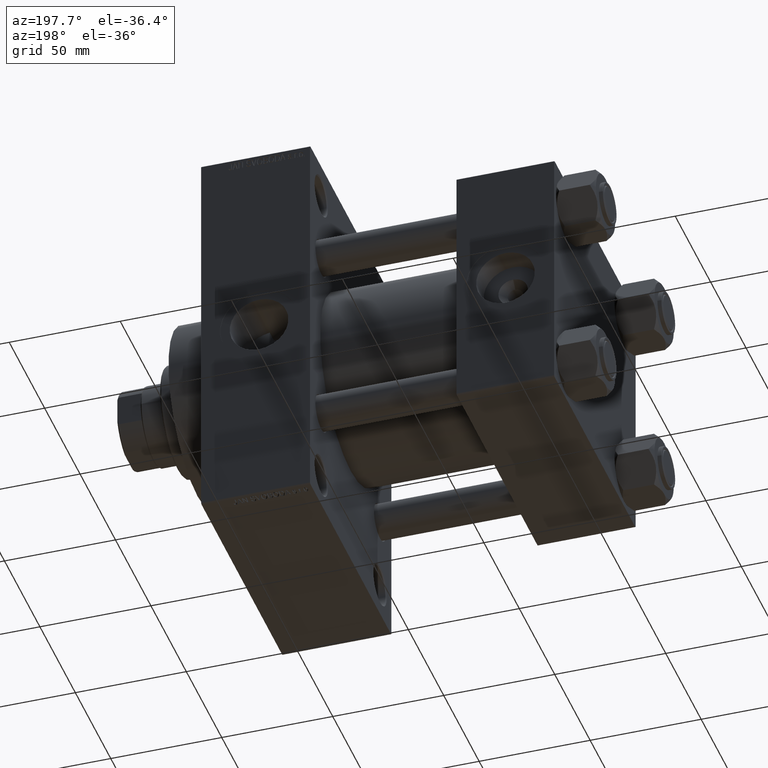
[diagram: clean part render]
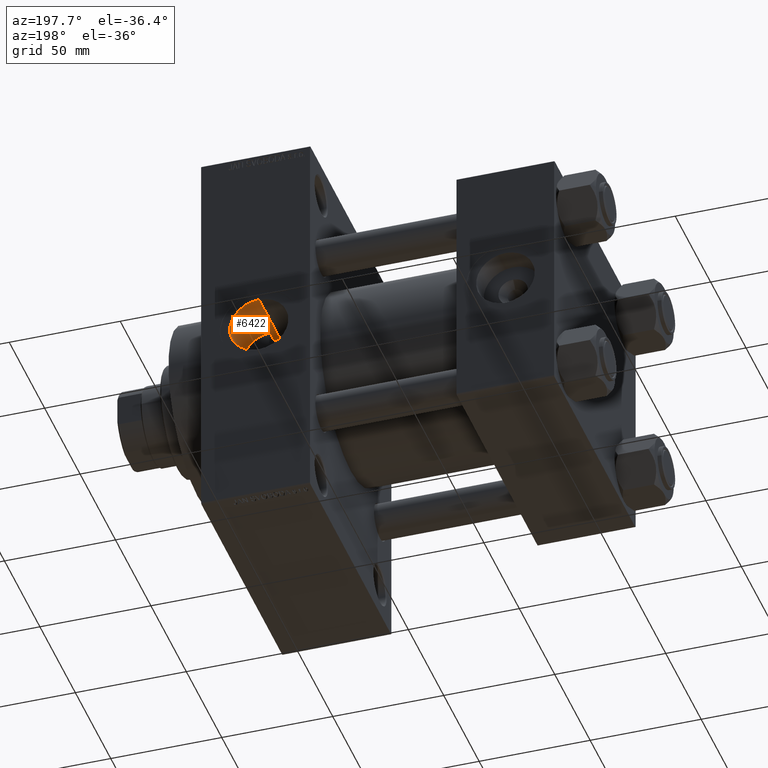
[diagram: same view with one face highlighted and labeled with its STEP entity id]
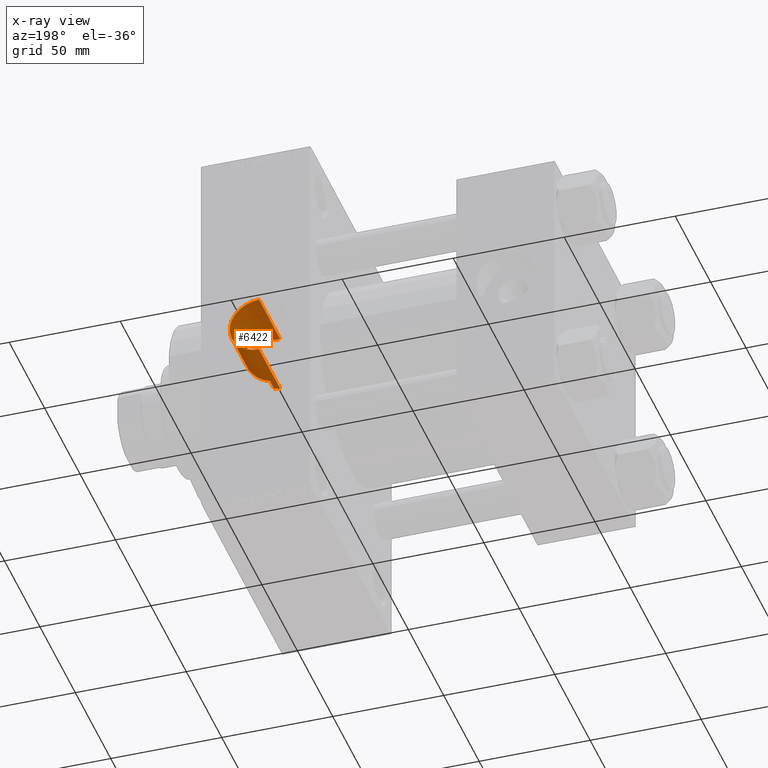
[diagram: x-ray of the same camera — body ghosted, the highlighted face saturated]
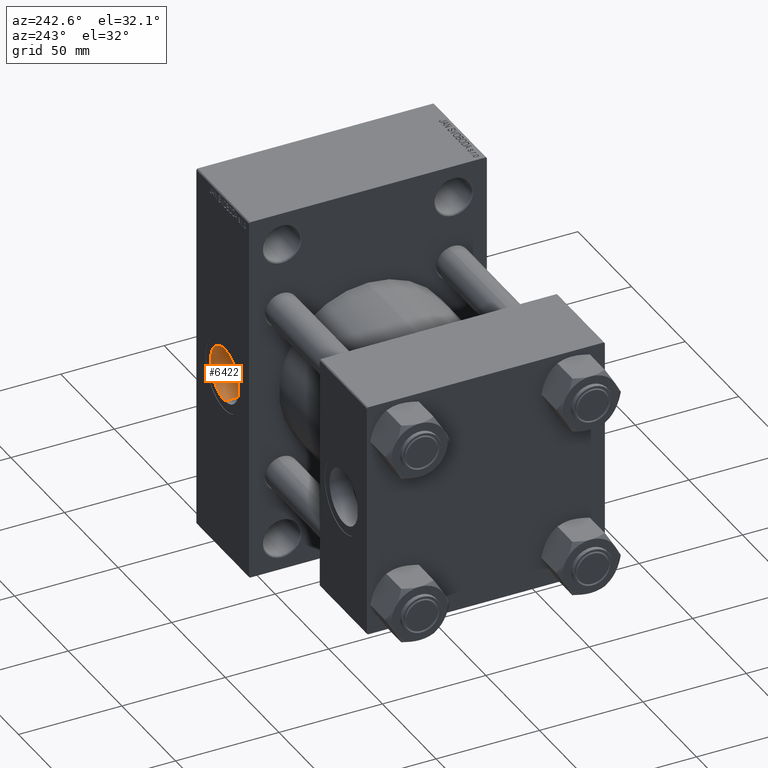
[diagram: same view with one face highlighted and labeled with its STEP entity id]
A machine part, auxiliary view. The second image highlights one B-rep face of the part: STEP entity #6422.
The next image is the same camera in x-ray: the body ghosted, the highlighted face saturated — about 1% of this face is hidden behind the body in this view.
A second angle (auxiliary view) of the same face is appended — the face is thin or edge-on in the first view.
In plain terms, the highlighted cylindrical surface (edge-blend (fillet) strip) has radius 13.22 mm, axis along (0, 1, 0).
Its self-contained STEP definition (entity closure, byte-faithful):
#215 = CARTESIAN_POINT ( 'NONE',  ( 138.5933060363426819, 33.94179174322903236, 12.00173046293031121 ) ) ;
#654 = ORIENTED_EDGE ( 'NONE', *, *, #23875, .F. ) ;
#918 = CARTESIAN_POINT ( 'NONE',  ( 143.7286871753288722, 35.15866088695766223, 7.760569906701274334 ) ) ;
#1393 = CARTESIAN_POINT ( 'NONE',  ( 145.1971085353886224, 35.63627862537938995, -5.154654075414359049 ) ) ;
#1587 = B_SPLINE_CURVE_WITH_KNOTS ( 'NONE', 3,
 ( #30149, #45071, #29915, #12047 ),
 .UNSPECIFIED., .F., .F.,
 ( 4, 4 ),
 ( 0.000000000000000000, 0.002754153663978152478 ),
 .UNSPECIFIED. ) ;
#1657 = CARTESIAN_POINT ( 'NONE',  ( 135.7400000000000091, 33.59671412504502541, -12.93293470176047677 ) ) ;
#4445 = EDGE_CURVE ( 'NONE', #4669, #41529, #30288, .T. ) ;
#4528 = CARTESIAN_POINT ( 'NONE',  ( 144.1394098962385613, 35.28849287670992396, -7.129014450017018056 ) ) ;
#4669 = VERTEX_POINT ( 'NONE', #10227 ) ;
#4899 = VECTOR ( 'NONE', #24540, 1000.000000000000000 ) ;
#4935 = DIRECTION ( 'NONE',  ( -0.000000000000000000, 1.000000000000000000, -0.000000000000000000 ) ) ;
#5002 = CARTESIAN_POINT ( 'NONE',  ( 144.3364747806119226, 35.35134026915534378, -6.811177353909287469 ) ) ;
#5010 = EDGE_CURVE ( 'NONE', #46758, #10520, #8878, .T. ) ;
#5241 = CARTESIAN_POINT ( 'NONE',  ( 145.7033546496753900, 35.81270017918523507, 3.737456918487965574 ) ) ;
#5479 = CARTESIAN_POINT ( 'NONE',  ( 144.1473667493317805, 35.28988197082103540, 7.145511571797288575 ) ) ;
#5647 = ORIENTED_EDGE ( 'NONE', *, *, #5010, .F. ) ;
#6368 = CARTESIAN_POINT ( 'NONE',  ( 133.0000000000000000, -37.39180658914467159, 2.216591108192586142E-15 ) ) ;
#6422 = ADVANCED_FACE ( 'NONE', ( #27869 ), #46886, .F. ) ;
#8878 = B_SPLINE_CURVE_WITH_KNOTS ( 'NONE', 3,
 ( #14692, #44102, #40481, #215, #19485, #45999, #15887, #42393, #12972, #33970, #12738, #918, #5479, #9109, #41916, #27454, #37814, #5241, #34204, #27683, #30594, #9341, #45514, #23353, #42155, #20200, #15646, #12015, #34449, #1393, #24066, #5002, #4528, #45280, #19957, #27214, #16124, #12259, #26973, #45759, #16364, #34688, #19244, #30355, #31312, #45043, #26734, #38057 ),
 .UNSPECIFIED., .F., .F.,
 ( 4, 2, 2, 2, 2, 2, 2, 2, 2, 2, 2, 2, 2, 2, 2, 2, 2, 2, 2, 2, 2, 2, 2, 4 ),
 ( 0.000000000000000000, 0.002261541487190001608, 0.004523082974380003216, 0.006784624461570005691, 0.007915395205165010398, 0.009046165948760015105, 0.01130770743595007656, 0.01243847817954510555, 0.01356924892314013455, 0.01583079041033019427, 0.01696156115392522326, 0.01809233189752025225, 0.02035387338471031024, 0.02148464412830534617, 0.02261541487190038210, 0.02487695635909042968, 0.02600772710268545521, 0.02713849784628048073, 0.02940003933347052831, 0.03053081007706552261, 0.03166158082066051344, 0.03392312230785050203, 0.03505389305144545470, 0.03618466379504041430 ),
 .UNSPECIFIED. ) ;
#9109 = CARTESIAN_POINT ( 'NONE',  ( 144.6959585139428839, 35.46825540645415487, 6.173441884947803437 ) ) ;
#9341 = CARTESIAN_POINT ( 'NONE',  ( 146.2028789376522013, 35.99370328767532357, 0.7717106264536142124 ) ) ;
#10041 = VERTEX_POINT ( 'NONE', #31678 ) ;
#10227 = CARTESIAN_POINT ( 'NONE',  ( 133.0000000000000000, 27.48602554026317435, 13.22000000000001485 ) ) ;
#10237 = DIRECTION ( 'NONE',  ( 0.000000000000000000, 0.000000000000000000, 1.000000000000000000 ) ) ;
#10520 = VERTEX_POINT ( 'NONE', #1657 ) ;
#10744 = VERTEX_POINT ( 'NONE', #43122 ) ;
#11519 = EDGE_CURVE ( 'NONE', #10744, #10041, #1587, .T. ) ;
#11935 = CARTESIAN_POINT ( 'NONE',  ( 135.7400000000000091, -37.39180658914467159, -12.93293470176047677 ) ) ;
#12015 = CARTESIAN_POINT ( 'NONE',  ( 145.6909266299917363, 35.80898173995095846, -3.721805252510565154 ) ) ;
#12047 = CARTESIAN_POINT ( 'NONE',  ( 133.0000000000000000, 27.48602554026317790, -13.22000000000001130 ) ) ;
#12259 = CARTESIAN_POINT ( 'NONE',  ( 141.4323112275375536, 34.52915186654069402, -10.18835451941007619 ) ) ;
#12738 = CARTESIAN_POINT ( 'NONE',  ( 143.0185801571961122, 34.95071279789108587, 8.633489739355315606 ) ) ;
#12791 = DIRECTION ( 'NONE',  ( 0.000000000000000000, 0.000000000000000000, 1.000000000000000000 ) ) ;
#12972 = CARTESIAN_POINT ( 'NONE',  ( 142.2521418842815422, 34.73862178565917702, 9.450126880761136050 ) ) ;
#14692 = CARTESIAN_POINT ( 'NONE',  ( 135.7400000000000091, 33.59671412504501831, 12.93293470176048032 ) ) ;
#14880 = CARTESIAN_POINT ( 'NONE',  ( 135.7400000000000091, 33.59671412504501831, 12.93293470176048032 ) ) ;
#15434 = ORIENTED_EDGE ( 'NONE', *, *, #39021, .T. ) ;
#15646 = CARTESIAN_POINT ( 'NONE',  ( 145.8829549964506782, 35.87748714674541617, -2.990137726740094593 ) ) ;
#15887 = CARTESIAN_POINT ( 'NONE',  ( 141.1461456704165869, 34.45721300195066306, 10.43832106051816488 ) ) ;
#16124 = CARTESIAN_POINT ( 'NONE',  ( 142.2706759706837261, 34.74024261417464743, -9.453842015368202567 ) ) ;
#16364 = CARTESIAN_POINT ( 'NONE',  ( 140.2252811143993370, 34.25403786948012197, -11.07714144511488996 ) ) ;
#16490 = AXIS2_PLACEMENT_3D ( 'NONE', #22929, #45813, #12791 ) ;
#17300 = LINE ( 'NONE', #39472, #4899 ) ;
#18275 = ORIENTED_EDGE ( 'NONE', *, *, #4445, .T. ) ;
#18800 = EDGE_CURVE ( 'NONE', #4669, #22464, #38508, .T. ) ;
#18842 = CARTESIAN_POINT ( 'NONE',  ( 133.9195580357263395, 27.48602554026317080, 13.22000000000001485 ) ) ;
#19244 = CARTESIAN_POINT ( 'NONE',  ( 138.6051762912404399, 33.94373400491306114, -11.99626342902757337 ) ) ;
#19485 = CARTESIAN_POINT ( 'NONE',  ( 139.2634667834694255, 34.05975999988856273, 11.66637162473797495 ) ) ;
#19957 = CARTESIAN_POINT ( 'NONE',  ( 143.4916658138077139, 35.08925744010397807, -8.051866093655576151 ) ) ;
#20200 = CARTESIAN_POINT ( 'NONE',  ( 145.9629156845498130, 35.90633945151148509, -2.621651557121439158 ) ) ;
#20730 = CARTESIAN_POINT ( 'NONE',  ( 133.0000000000000000, 57.29999999999996874, -13.22000000000001130 ) ) ;
#22035 = EDGE_LOOP ( 'NONE', ( #654, #23805, #40716, #5647, #40416, #42617, #18275, #15434 ) ) ;
#22464 = VERTEX_POINT ( 'NONE', #26308 ) ;
#22929 = CARTESIAN_POINT ( 'NONE',  ( 133.0000000000000000, 57.29999999999996874, 2.216591108192586142E-15 ) ) ;
#23353 = CARTESIAN_POINT ( 'NONE',  ( 146.2204654152534147, 36.00017091079578790, -0.7555805454783885988 ) ) ;
#23699 = VERTEX_POINT ( 'NONE', #20730 ) ;
#23805 = ORIENTED_EDGE ( 'NONE', *, *, #11519, .F. ) ;
#23875 = EDGE_CURVE ( 'NONE', #10041, #23699, #17300, .T. ) ;
#24066 = CARTESIAN_POINT ( 'NONE',  ( 144.8859945304910184, 35.53010638142644240, -5.835162689468439190 ) ) ;
#24540 = DIRECTION ( 'NONE',  ( -0.000000000000000000, 1.000000000000000000, -0.000000000000000000 ) ) ;
#25450 = DIRECTION ( 'NONE',  ( 0.000000000000000000, -1.000000000000000000, 0.000000000000000000 ) ) ;
#26308 = CARTESIAN_POINT ( 'NONE',  ( 135.7400000000000091, 27.62225914004862304, 12.93293470176048032 ) ) ;
#26324 = CARTESIAN_POINT ( 'NONE',  ( 135.7400000000000091, 27.62225914004862304, 12.93293470176048032 ) ) ;
#26734 = CARTESIAN_POINT ( 'NONE',  ( 136.1132085380460239, 33.62715136930764714, -12.85386591978424775 ) ) ;
#26973 = CARTESIAN_POINT ( 'NONE',  ( 141.1417547516501543, 34.45915333924856583, -10.42213975181990726 ) ) ;
#27214 = CARTESIAN_POINT ( 'NONE',  ( 142.7854413968720166, 34.88242835481358384, -8.920220469445172995 ) ) ;
#27454 = CARTESIAN_POINT ( 'NONE',  ( 145.1774292073409072, 35.63004118577010360, 5.159373866595187152 ) ) ;
#27683 = CARTESIAN_POINT ( 'NONE',  ( 146.0882787205803197, 35.95178749193544121, 1.899113185740345822 ) ) ;
#27869 = FACE_OUTER_BOUND ( 'NONE', #22035, .T. ) ;
#28629 = VECTOR ( 'NONE', #38444, 1000.000000000000000 ) ;
#29915 = CARTESIAN_POINT ( 'NONE',  ( 133.9197172709656627, 27.48602554026317435, -13.22000000000000952 ) ) ;
#30149 = CARTESIAN_POINT ( 'NONE',  ( 135.7399999999999523, 27.62225914004861949, -12.93293470176048743 ) ) ;
#30260 = LINE ( 'NONE', #44712, #42837 ) ;
#30288 = LINE ( 'NONE', #41846, #35234 ) ;
#30355 = CARTESIAN_POINT ( 'NONE',  ( 137.5630435524126085, 33.79252632900233522, -12.41317920266251384 ) ) ;
#30360 = EDGE_CURVE ( 'NONE', #46758, #22464, #30260, .T. ) ;
#30594 = CARTESIAN_POINT ( 'NONE',  ( 146.1371322321481045, 35.96963868881437776, 1.525551129375370740 ) ) ;
#30994 = CARTESIAN_POINT ( 'NONE',  ( 133.0000000000000000, 57.29999999999996874, 13.22000000000001485 ) ) ;
#31312 = CARTESIAN_POINT ( 'NONE',  ( 137.2082429394939993, 33.74627601644314012, -12.53805090881421691 ) ) ;
#31678 = CARTESIAN_POINT ( 'NONE',  ( 133.0000000000000000, 27.48602554026317790, -13.22000000000001130 ) ) ;
#31963 = DIRECTION ( 'NONE',  ( -0.000000000000000000, 1.000000000000000000, -0.000000000000000000 ) ) ;
#33970 = CARTESIAN_POINT ( 'NONE',  ( 142.7693593199377062, 34.87993829756943853, 8.914406653687468207 ) ) ;
#33976 = EDGE_CURVE ( 'NONE', #10744, #10520, #44958, .T. ) ;
#34204 = CARTESIAN_POINT ( 'NONE',  ( 145.8947141785547501, 35.88162189390808265, 3.009955031685968674 ) ) ;
#34449 = CARTESIAN_POINT ( 'NONE',  ( 145.5781868588421162, 35.76909572614820831, -4.086623809376308536 ) ) ;
#34514 = AXIS2_PLACEMENT_3D ( 'NONE', #6368, #31963, #10237 ) ;
#34688 = CARTESIAN_POINT ( 'NONE',  ( 139.2703969792703447, 34.06113284969202937, -11.66224338757623080 ) ) ;
#35234 = VECTOR ( 'NONE', #4935, 1000.000000000000000 ) ;
#37814 = CARTESIAN_POINT ( 'NONE',  ( 145.3202010958179926, 35.67919034582469351, 4.808835186596751576 ) ) ;
#38057 = CARTESIAN_POINT ( 'NONE',  ( 135.7400000000000091, 33.59671412504502541, -12.93293470176047677 ) ) ;
#38444 = DIRECTION ( 'NONE',  ( -0.000000000000000000, 1.000000000000000000, -0.000000000000000000 ) ) ;
#38508 = B_SPLINE_CURVE_WITH_KNOTS ( 'NONE', 3,
 ( #44871, #18842, #41737, #26324 ),
 .UNSPECIFIED., .F., .F.,
 ( 4, 4 ),
 ( 0.04462176242505772744, 0.04737470670999824329 ),
 .UNSPECIFIED. ) ;
#39021 = EDGE_CURVE ( 'NONE', #41529, #23699, #44966, .T. ) ;
#39472 = CARTESIAN_POINT ( 'NONE',  ( 133.0000000000000000, -37.39180658914467159, -13.22000000000001130 ) ) ;
#40416 = ORIENTED_EDGE ( 'NONE', *, *, #30360, .T. ) ;
#40481 = CARTESIAN_POINT ( 'NONE',  ( 137.2054463598958876, 33.74086444373506311, 12.55550984369234335 ) ) ;
#40716 = ORIENTED_EDGE ( 'NONE', *, *, #33976, .T. ) ;
#41529 = VERTEX_POINT ( 'NONE', #30994 ) ;
#41737 = CARTESIAN_POINT ( 'NONE',  ( 134.8329127057289156, 27.53228028735227184, 13.12511221163103059 ) ) ;
#41846 = CARTESIAN_POINT ( 'NONE',  ( 133.0000000000000000, -37.39180658914467159, 13.22000000000001485 ) ) ;
#41916 = CARTESIAN_POINT ( 'NONE',  ( 144.8655034412034013, 35.52464249944090824, 5.841125651952394193 ) ) ;
#42155 = CARTESIAN_POINT ( 'NONE',  ( 146.1552577846638030, 35.97607714065905782, -1.508294515622379262 ) ) ;
#42393 = CARTESIAN_POINT ( 'NONE',  ( 141.9832966455934127, 34.66782771197623703, 9.705989920600362808 ) ) ;
#42617 = ORIENTED_EDGE ( 'NONE', *, *, #18800, .F. ) ;
#42837 = VECTOR ( 'NONE', #25450, 1000.000000000000000 ) ;
#43122 = CARTESIAN_POINT ( 'NONE',  ( 135.7399999999999523, 27.62225914004861949, -12.93293470176048743 ) ) ;
#44102 = CARTESIAN_POINT ( 'NONE',  ( 136.4863705348069232, 33.65758481786811274, 12.77480699814712217 ) ) ;
#44712 = CARTESIAN_POINT ( 'NONE',  ( 135.7400000000000091, -37.39180658914467159, 12.93293470176048032 ) ) ;
#44871 = CARTESIAN_POINT ( 'NONE',  ( 133.0000000000000000, 27.48602554026317435, 13.22000000000001485 ) ) ;
#44958 = LINE ( 'NONE', #11935, #28629 ) ;
#44966 = CIRCLE ( 'NONE', #16490, 13.22000000000001307 ) ;
#45043 = CARTESIAN_POINT ( 'NONE',  ( 136.4830526523834351, 33.66353356555785581, -12.75854119602011849 ) ) ;
#45071 = CARTESIAN_POINT ( 'NONE',  ( 134.8330702609090110, 27.53229591609543903, -13.12507883164392197 ) ) ;
#45280 = CARTESIAN_POINT ( 'NONE',  ( 143.7169491878082965, 35.15742135833136928, -7.749599987799653533 ) ) ;
#45514 = CARTESIAN_POINT ( 'NONE',  ( 146.2197635704351910, 35.99991317782382794, 0.3899398427316232985 ) ) ;
#45759 = CARTESIAN_POINT ( 'NONE',  ( 140.5375552836966904, 34.32141923167823450, -10.86712601324282090 ) ) ;
#45813 = DIRECTION ( 'NONE',  ( 0.000000000000000000, 1.000000000000000000, 0.000000000000000000 ) ) ;
#45999 = CARTESIAN_POINT ( 'NONE',  ( 140.5474911551487480, 34.31910339503980367, 10.87982629903011578 ) ) ;
#46758 = VERTEX_POINT ( 'NONE', #14880 ) ;
#46886 = CYLINDRICAL_SURFACE ( 'NONE', #34514, 13.22000000000001307 ) ;